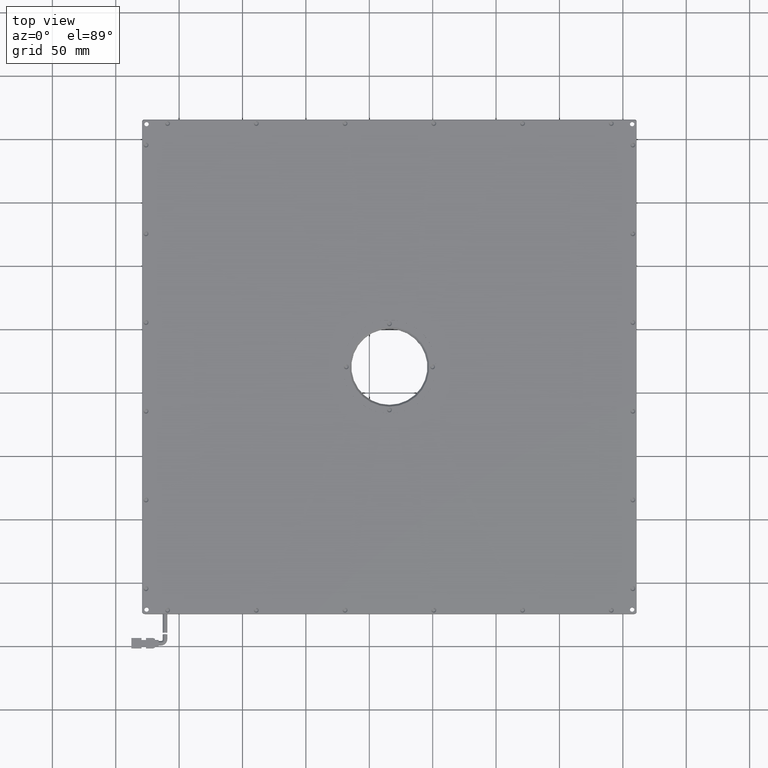
[diagram: clean part render]
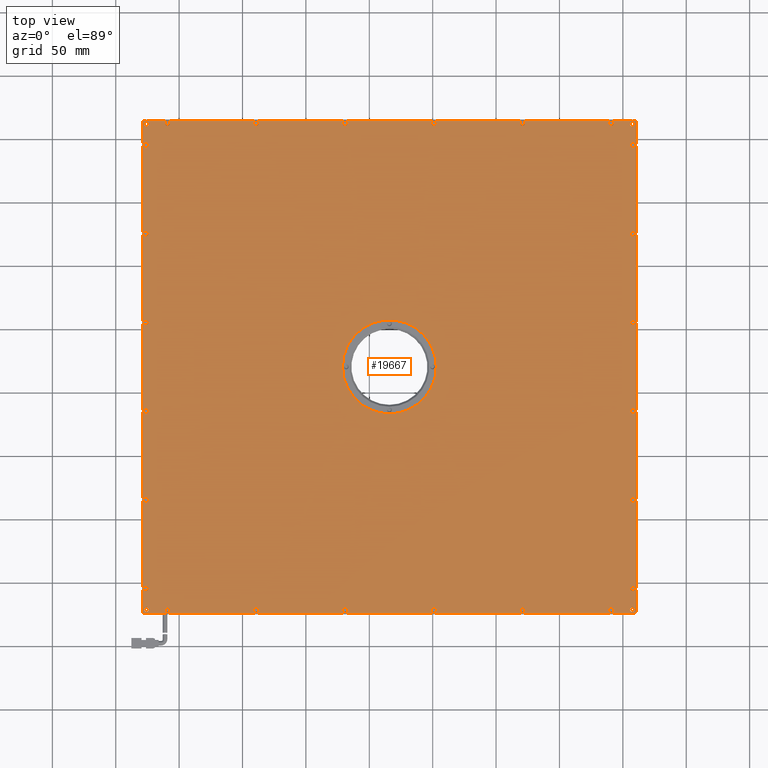
[diagram: same view with one face highlighted and labeled with its STEP entity id]
A machine part, top view. The second image highlights one B-rep face of the part: STEP entity #19667.
In plain terms, the highlighted planar face has unit normal (0, -0, 1).
Its self-contained STEP definition (entity closure, byte-faithful):
#19 = EDGE_CURVE ( 'NONE', #16610, #15434, #18710, .T. ) ;
#71 = ORIENTED_EDGE ( 'NONE', *, *, #5169, .F. ) ;
#99 = CIRCLE ( 'NONE', #7311, 1.749999999999973800 ) ;
#132 = VERTEX_POINT ( 'NONE', #11155 ) ;
#182 = CARTESIAN_POINT ( 'NONE',  ( 70.85159820146100200, 212.4229729729719100, 8.250000000019097600 ) ) ;
#192 = DIRECTION ( 'NONE',  ( 1.000000000000000000, 0.0000000000000000000, 0.0000000000000000000 ) ) ;
#221 = CARTESIAN_POINT ( 'NONE',  ( -228.1484017985404500, 55.42297297297388100, 8.250000000019097600 ) ) ;
#245 = DIRECTION ( 'NONE',  ( 1.000000000000000000, 0.0000000000000000000, 0.0000000000000000000 ) ) ;
#292 = CARTESIAN_POINT ( 'NONE',  ( -139.1484017985389100, -171.5770270270280400, 8.250000000019097600 ) ) ;
#489 = EDGE_CURVE ( 'NONE', #5681, #8412, #10947, .T. ) ;
#575 = ORIENTED_EDGE ( 'NONE', *, *, #9000, .T. ) ;
#677 = VERTEX_POINT ( 'NONE', #19984 ) ;
#689 = AXIS2_PLACEMENT_3D ( 'NONE', #7509, #11070, #11147 ) ;
#701 = CARTESIAN_POINT ( 'NONE',  ( 157.8515982014611400, 55.42297297297133700, 8.250000000019097600 ) ) ;
#725 = DIRECTION ( 'NONE',  ( -0.7071067811865752200, 0.7071067811865197100, 0.0000000000000000000 ) ) ;
#739 = CIRCLE ( 'NONE', #5838, 2.000000000034613200 ) ;
#899 = ORIENTED_EDGE ( 'NONE', *, *, #19, .T. ) ;
#911 = AXIS2_PLACEMENT_3D ( 'NONE', #11047, #19622, #6128 ) ;
#934 = VECTOR ( 'NONE', #12184, 1000.000000000000000 ) ;
#937 = EDGE_CURVE ( 'NONE', #21465, #8484, #11721, .T. ) ;
#972 = EDGE_CURVE ( 'NONE', #132, #18748, #16274, .T. ) ;
#973 = CARTESIAN_POINT ( 'NONE',  ( -1.148401798573610400, 212.4229729729719100, 8.250000000019097600 ) ) ;
#988 = CARTESIAN_POINT ( 'NONE',  ( -69.14840179853901200, 212.4229729729719100, 8.249999999962254200 ) ) ;
#1047 = CARTESIAN_POINT ( 'NONE',  ( -211.1484017985373200, 212.4229729729718800, 8.250000000019097600 ) ) ;
#1063 = DIRECTION ( 'NONE',  ( -0.0000000000000000000, 0.0000000000000000000, -1.000000000000000000 ) ) ;
#1089 = DIRECTION ( 'NONE',  ( 1.000000000000000000, 0.0000000000000000000, 0.0000000000000000000 ) ) ;
#1091 = VERTEX_POINT ( 'NONE', #20332 ) ;
#1127 = CIRCLE ( 'NONE', #689, 2.000000000027660100 ) ;
#1128 = VERTEX_POINT ( 'NONE', #16843 ) ;
#1159 = CARTESIAN_POINT ( 'NONE',  ( 157.8515982014609200, -14.57702702702867700, 8.250000000019097600 ) ) ;
#1160 = EDGE_CURVE ( 'NONE', #4319, #12065, #10635, .T. ) ;
#1171 = VERTEX_POINT ( 'NONE', #5293 ) ;
#1176 = DIRECTION ( 'NONE',  ( 1.000000000000000000, 0.0000000000000000000, 0.0000000000000000000 ) ) ;
#1190 = FACE_BOUND ( 'NONE', #3068, .T. ) ;
#1197 = ORIENTED_EDGE ( 'NONE', *, *, #9824, .T. ) ;
#1214 = FACE_BOUND ( 'NONE', #17981, .T. ) ;
#1223 = CARTESIAN_POINT ( 'NONE',  ( -34.14840179853894900, 20.42297297297193700, 8.249999999999998200 ) ) ;
#1250 = CARTESIAN_POINT ( 'NONE',  ( 159.8515982014210400, -14.57702702702867700, 8.250000000019097600 ) ) ;
#1261 = ORIENTED_EDGE ( 'NONE', *, *, #9126, .T. ) ;
#1269 = AXIS2_PLACEMENT_3D ( 'NONE', #3162, #16796, #21929 ) ;
#1361 = CARTESIAN_POINT ( 'NONE',  ( -229.1484017985389700, -174.0770270270280900, 8.250000000000026600 ) ) ;
#1427 = VERTEX_POINT ( 'NONE', #973 ) ;
#1428 = DIRECTION ( 'NONE',  ( 0.0000000000000000000, 0.0000000000000000000, -1.000000000000000000 ) ) ;
#1463 = VERTEX_POINT ( 'NONE', #12862 ) ;
#1486 = AXIS2_PLACEMENT_3D ( 'NONE', #14032, #14098, #2052 ) ;
#1491 = VERTEX_POINT ( 'NONE', #14599 ) ;
#1557 = AXIS2_PLACEMENT_3D ( 'NONE', #13792, #18962, #19162 ) ;
#1608 = VERTEX_POINT ( 'NONE', #6887 ) ;
#1609 = DIRECTION ( 'NONE',  ( 1.000000000000000000, 0.0000000000000000000, 0.0000000000000000000 ) ) ;
#1758 = CARTESIAN_POINT ( 'NONE',  ( 157.8515982014616000, 195.4229729729713400, 8.250000000019097600 ) ) ;
#1793 = CIRCLE ( 'NONE', #8721, 1.749999999999973800 ) ;
#1794 = EDGE_LOOP ( 'NONE', ( #9988, #13631 ) ) ;
#1827 = DIRECTION ( 'NONE',  ( -0.0000000000000000000, 0.0000000000000000000, -1.000000000000000000 ) ) ;
#1844 = CARTESIAN_POINT ( 'NONE',  ( 157.8515982014611400, 55.42297297297133700, 8.250000000019097600 ) ) ;
#1845 = EDGE_LOOP ( 'NONE', ( #2227, #13469 ) ) ;
#1932 = EDGE_CURVE ( 'NONE', #4319, #10897, #12162, .T. ) ;
#2009 = AXIS2_PLACEMENT_3D ( 'NONE', #1844, #8470, #1609 ) ;
#2042 = AXIS2_PLACEMENT_3D ( 'NONE', #10353, #5205, #5283 ) ;
#2052 = DIRECTION ( 'NONE',  ( 1.000000000000000000, 0.0000000000000000000, 0.0000000000000000000 ) ) ;
#2205 = CIRCLE ( 'NONE', #13730, 1.999999999991425300 ) ;
#2227 = ORIENTED_EDGE ( 'NONE', *, *, #14999, .T. ) ;
#2269 = EDGE_CURVE ( 'NONE', #19689, #3509, #19844, .T. ) ;
#2273 = FACE_BOUND ( 'NONE', #20085, .T. ) ;
#2340 = EDGE_CURVE ( 'NONE', #16902, #12065, #16410, .T. ) ;
#2344 = CIRCLE ( 'NONE', #6830, 2.000000000004082100 ) ;
#2382 = AXIS2_PLACEMENT_3D ( 'NONE', #17221, #6990, #18947 ) ;
#2551 = CARTESIAN_POINT ( 'NONE',  ( 159.8515982014210400, 125.4229729729713400, 8.250000000019097600 ) ) ;
#2568 = PLANE ( 'NONE',  #4265 ) ;
#2573 = CARTESIAN_POINT ( 'NONE',  ( 155.8515982015003100, -84.57702702702867700, 8.250000000019097600 ) ) ;
#2701 = EDGE_LOOP ( 'NONE', ( #11495, #16515 ) ) ;
#2788 = DIRECTION ( 'NONE',  ( -0.0000000000000000000, 0.0000000000000000000, -1.000000000000000000 ) ) ;
#2895 = EDGE_LOOP ( 'NONE', ( #19417, #15544 ) ) ;
#2918 = DIRECTION ( 'NONE',  ( 1.000000000000000000, 0.0000000000000000000, 0.0000000000000000000 ) ) ;
#2976 = VERTEX_POINT ( 'NONE', #7776 ) ;
#3068 = EDGE_LOOP ( 'NONE', ( #575, #899 ) ) ;
#3097 = EDGE_CURVE ( 'NONE', #11017, #9340, #19969, .T. ) ;
#3162 = CARTESIAN_POINT ( 'NONE',  ( -226.1484017985378300, 125.4229729729738900, 8.250000000019097600 ) ) ;
#3173 = VERTEX_POINT ( 'NONE', #18899 ) ;
#3220 = ORIENTED_EDGE ( 'NONE', *, *, #17014, .T. ) ;
#3252 = VERTEX_POINT ( 'NONE', #7170 ) ;
#3347 = FACE_BOUND ( 'NONE', #17711, .T. ) ;
#3357 = CARTESIAN_POINT ( 'NONE',  ( 157.3515982014610000, 211.9229729729719300, 8.250000000000000000 ) ) ;
#3396 = EDGE_CURVE ( 'NONE', #9691, #21861, #15974, .T. ) ;
#3456 = CARTESIAN_POINT ( 'NONE',  ( 0.8515982014610026200, 212.4229729729719100, 8.250000000019097600 ) ) ;
#3474 = VERTEX_POINT ( 'NONE', #9856 ) ;
#3485 = ORIENTED_EDGE ( 'NONE', *, *, #21407, .T. ) ;
#3509 = VERTEX_POINT ( 'NONE', #18198 ) ;
#3511 = DIRECTION ( 'NONE',  ( 1.000000000000000000, 0.0000000000000000000, 0.0000000000000000000 ) ) ;
#3515 = CIRCLE ( 'NONE', #13488, 1.749999999999973800 ) ;
#3521 = DIRECTION ( 'NONE',  ( -0.0000000000000000000, 0.0000000000000000000, -1.000000000000000000 ) ) ;
#3570 = EDGE_CURVE ( 'NONE', #7675, #14749, #17293, .T. ) ;
#3647 = DIRECTION ( 'NONE',  ( 1.000000000000000000, 7.116814260417670700E-017, 7.116814260417670700E-017 ) ) ;
#3656 = CARTESIAN_POINT ( 'NONE',  ( 70.85159820146114400, -171.5770270270280100, 8.250000000019097600 ) ) ;
#3669 = DIRECTION ( 'NONE',  ( 1.000000000000000000, 0.0000000000000000000, 0.0000000000000000000 ) ) ;
#3682 = CARTESIAN_POINT ( 'NONE',  ( 157.8515982014616000, 195.4229729729713400, 8.250000000019097600 ) ) ;
#3702 = ORIENTED_EDGE ( 'NONE', *, *, #17756, .T. ) ;
#3723 = ORIENTED_EDGE ( 'NONE', *, *, #15780, .T. ) ;
#3757 = ORIENTED_EDGE ( 'NONE', *, *, #9455, .T. ) ;
#3823 = VERTEX_POINT ( 'NONE', #9653 ) ;
#3892 = AXIS2_PLACEMENT_3D ( 'NONE', #1159, #4462, #1089 ) ;
#3895 = CIRCLE ( 'NONE', #1557, 1.999999999959645200 ) ;
#3935 = EDGE_CURVE ( 'NONE', #6903, #1427, #739, .T. ) ;
#3975 = EDGE_CURVE ( 'NONE', #12060, #10923, #2344, .T. ) ;
#4049 = AXIS2_PLACEMENT_3D ( 'NONE', #1758, #5233, #13646 ) ;
#4063 = CIRCLE ( 'NONE', #9250, 1.999999999960588900 ) ;
#4085 = EDGE_CURVE ( 'NONE', #9340, #11017, #21250, .T. ) ;
#4106 = EDGE_LOOP ( 'NONE', ( #21252, #6477 ) ) ;
#4125 = ORIENTED_EDGE ( 'NONE', *, *, #3570, .T. ) ;
#4139 = DIRECTION ( 'NONE',  ( 1.000000000000000000, 0.0000000000000000000, 0.0000000000000000000 ) ) ;
#4154 = ORIENTED_EDGE ( 'NONE', *, *, #8740, .T. ) ;
#4160 = DIRECTION ( 'NONE',  ( 0.0000000000000000000, -1.000000000000000000, -0.0000000000000000000 ) ) ;
#4186 = VERTEX_POINT ( 'NONE', #2551 ) ;
#4265 = AXIS2_PLACEMENT_3D ( 'NONE', #21043, #16143, #12680 ) ;
#4294 = CARTESIAN_POINT ( 'NONE',  ( -228.1484017985433500, -84.57702702702613400, 8.250000000019097600 ) ) ;
#4301 = CARTESIAN_POINT ( 'NONE',  ( 160.3515982014610000, 215.4229729729718800, 8.249999999999998200 ) ) ;
#4319 = VERTEX_POINT ( 'NONE', #19662 ) ;
#4323 = CARTESIAN_POINT ( 'NONE',  ( -139.1484017985390300, 212.4229729729718800, 8.250000000019097600 ) ) ;
#4387 = DIRECTION ( 'NONE',  ( 1.000000000000000000, 0.0000000000000000000, 0.0000000000000000000 ) ) ;
#4436 = CIRCLE ( 'NONE', #911, 1.749999999999973800 ) ;
#4462 = DIRECTION ( 'NONE',  ( -0.0000000000000000000, 0.0000000000000000000, -1.000000000000000000 ) ) ;
#4592 = ORIENTED_EDGE ( 'NONE', *, *, #13868, .T. ) ;
#4675 = CARTESIAN_POINT ( 'NONE',  ( -228.6484017985390300, 214.2158661917852100, 8.249999999999998200 ) ) ;
#4907 = DIRECTION ( 'NONE',  ( -1.000000000000000000, -7.116814260417670700E-017, 7.116814260417670700E-017 ) ) ;
#4917 = DIRECTION ( 'NONE',  ( 1.000000000000000000, 0.0000000000000000000, 0.0000000000000000000 ) ) ;
#4967 = AXIS2_PLACEMENT_3D ( 'NONE', #19829, #13118, #4387 ) ;
#5063 = EDGE_LOOP ( 'NONE', ( #4125, #3220 ) ) ;
#5069 = CARTESIAN_POINT ( 'NONE',  ( 138.8515982014403400, -171.5770270270280100, 8.250000000019097600 ) ) ;
#5082 = VERTEX_POINT ( 'NONE', #17477 ) ;
#5097 = CARTESIAN_POINT ( 'NONE',  ( -225.6484017985369500, 211.9229729729738900, 8.250000000000000000 ) ) ;
#5168 = FACE_BOUND ( 'NONE', #16571, .T. ) ;
#5169 = EDGE_CURVE ( 'NONE', #18579, #10897, #14203, .T. ) ;
#5176 = AXIS2_PLACEMENT_3D ( 'NONE', #22066, #20433, #13563 ) ;
#5193 = FACE_BOUND ( 'NONE', #5063, .T. ) ;
#5205 = DIRECTION ( 'NONE',  ( -0.0000000000000000000, 0.0000000000000000000, -1.000000000000000000 ) ) ;
#5233 = DIRECTION ( 'NONE',  ( -0.0000000000000000000, 0.0000000000000000000, -1.000000000000000000 ) ) ;
#5239 = DIRECTION ( 'NONE',  ( 1.000000000000000000, 0.0000000000000000000, 0.0000000000000000000 ) ) ;
#5248 = CARTESIAN_POINT ( 'NONE',  ( -226.1484017985407600, -154.5770270270261300, 8.250000000019097600 ) ) ;
#5283 = DIRECTION ( 'NONE',  ( 1.000000000000000000, 0.0000000000000000000, 0.0000000000000000000 ) ) ;
#5293 = CARTESIAN_POINT ( 'NONE',  ( 155.8515982015007900, -14.57702702702867700, 8.250000000019097600 ) ) ;
#5295 = ORIENTED_EDGE ( 'NONE', *, *, #16312, .T. ) ;
#5300 = CIRCLE ( 'NONE', #4967, 1.749999999999973800 ) ;
#5356 = ORIENTED_EDGE ( 'NONE', *, *, #3975, .T. ) ;
#5361 = CIRCLE ( 'NONE', #15524, 1.749999999999973800 ) ;
#5462 = EDGE_LOOP ( 'NONE', ( #10692, #14009 ) ) ;
#5465 = EDGE_LOOP ( 'NONE', ( #11300, #12400 ) ) ;
#5521 = CARTESIAN_POINT ( 'NONE',  ( -71.14840179852360800, 212.4229729729719100, 8.249999999962254200 ) ) ;
#5605 = DIRECTION ( 'NONE',  ( -0.0000000000000000000, 0.0000000000000000000, -1.000000000000000000 ) ) ;
#5681 = VERTEX_POINT ( 'NONE', #1047 ) ;
#5687 = DIRECTION ( 'NONE',  ( -0.0000000000000000000, 0.0000000000000000000, -1.000000000000000000 ) ) ;
#5715 = AXIS2_PLACEMENT_3D ( 'NONE', #18758, #13668, #8537 ) ;
#5718 = FACE_BOUND ( 'NONE', #13174, .T. ) ;
#5731 = CARTESIAN_POINT ( 'NONE',  ( -209.1484017985390600, 212.4229729729718800, 8.250000000019097600 ) ) ;
#5745 = FACE_BOUND ( 'NONE', #13266, .T. ) ;
#5769 = EDGE_CURVE ( 'NONE', #10900, #3823, #5361, .T. ) ;
#5793 = DIRECTION ( 'NONE',  ( 1.000000000000000000, 0.0000000000000000000, 0.0000000000000000000 ) ) ;
#5838 = AXIS2_PLACEMENT_3D ( 'NONE', #3456, #1827, #6637 ) ;
#5880 = ORIENTED_EDGE ( 'NONE', *, *, #10559, .T. ) ;
#5907 = AXIS2_PLACEMENT_3D ( 'NONE', #5731, #16162, #5793 ) ;
#5920 = CIRCLE ( 'NONE', #5176, 2.000000000034613200 ) ;
#5934 = AXIS2_PLACEMENT_3D ( 'NONE', #19274, #20991, #12839 ) ;
#5968 = AXIS2_PLACEMENT_3D ( 'NONE', #16657, #11362, #1176 ) ;
#6018 = EDGE_CURVE ( 'NONE', #12640, #15518, #20606, .T. ) ;
#6052 = CARTESIAN_POINT ( 'NONE',  ( 159.6444914202745300, 214.9229729729719100, 8.250000000000003600 ) ) ;
#6058 = CIRCLE ( 'NONE', #15589, 2.000000000000445900 ) ;
#6099 = CIRCLE ( 'NONE', #2009, 1.999999999959895000 ) ;
#6100 = DIRECTION ( 'NONE',  ( 1.000000000000000000, 0.0000000000000000000, 0.0000000000000000000 ) ) ;
#6128 = DIRECTION ( 'NONE',  ( 1.000000000000000000, 0.0000000000000000000, 0.0000000000000000000 ) ) ;
#6137 = EDGE_CURVE ( 'NONE', #10676, #9982, #4063, .T. ) ;
#6141 = AXIS2_PLACEMENT_3D ( 'NONE', #18827, #3521, #192 ) ;
#6198 = CARTESIAN_POINT ( 'NONE',  ( -226.1484017985371200, 195.4229729729738900, 8.250000000019097600 ) ) ;
#6230 = LINE ( 'NONE', #8843, #934 ) ;
#6269 = EDGE_CURVE ( 'NONE', #10923, #12060, #11822, .T. ) ;
#6343 = VERTEX_POINT ( 'NONE', #4675 ) ;
#6473 = ORIENTED_EDGE ( 'NONE', *, *, #1160, .F. ) ;
#6474 = DIRECTION ( 'NONE',  ( 0.0000000000000000000, 0.0000000000000000000, -1.000000000000000000 ) ) ;
#6477 = ORIENTED_EDGE ( 'NONE', *, *, #9984, .T. ) ;
#6576 = CARTESIAN_POINT ( 'NONE',  ( 157.8515982014604300, -154.5770270270286900, 8.250000000019097600 ) ) ;
#6582 = CIRCLE ( 'NONE', #16994, 1.999999999959423100 ) ;
#6589 = EDGE_CURVE ( 'NONE', #3474, #7916, #15545, .T. ) ;
#6628 = AXIS2_PLACEMENT_3D ( 'NONE', #16258, #8091, #16876 ) ;
#6637 = DIRECTION ( 'NONE',  ( 1.000000000000000000, 0.0000000000000000000, 0.0000000000000000000 ) ) ;
#6656 = CARTESIAN_POINT ( 'NONE',  ( 70.85159820146100200, 212.4229729729719100, 8.250000000019097600 ) ) ;
#6705 = EDGE_CURVE ( 'NONE', #8017, #13969, #1127, .T. ) ;
#6773 = FACE_BOUND ( 'NONE', #1794, .T. ) ;
#6800 = CARTESIAN_POINT ( 'NONE',  ( 2.851598201495615800, -171.5770270270280400, 8.250000000019097600 ) ) ;
#6830 = AXIS2_PLACEMENT_3D ( 'NONE', #13500, #20441, #5239 ) ;
#6887 = CARTESIAN_POINT ( 'NONE',  ( -141.1484017985304400, 212.4229729729718800, 8.250000000019097600 ) ) ;
#6903 = VERTEX_POINT ( 'NONE', #9979 ) ;
#6911 = CARTESIAN_POINT ( 'NONE',  ( 157.8515982014609200, -14.57702702702867700, 8.250000000019097600 ) ) ;
#6914 = CARTESIAN_POINT ( 'NONE',  ( -227.9412950173523600, 214.9229729729718800, 8.249999999999998200 ) ) ;
#6942 = AXIS2_PLACEMENT_3D ( 'NONE', #292, #15797, #19125 ) ;
#6960 = EDGE_LOOP ( 'NONE', ( #16001, #14184 ) ) ;
#6990 = DIRECTION ( 'NONE',  ( -0.0000000000000000000, 0.0000000000000000000, -1.000000000000000000 ) ) ;
#7015 = AXIS2_PLACEMENT_3D ( 'NONE', #15965, #17672, #14529 ) ;
#7043 = DIRECTION ( 'NONE',  ( -0.0000000000000000000, 0.0000000000000000000, -1.000000000000000000 ) ) ;
#7067 = ORIENTED_EDGE ( 'NONE', *, *, #1932, .T. ) ;
#7104 = AXIS2_PLACEMENT_3D ( 'NONE', #3656, #18727, #245 ) ;
#7130 = AXIS2_PLACEMENT_3D ( 'NONE', #10657, #5605, #9029 ) ;
#7170 = CARTESIAN_POINT ( 'NONE',  ( 68.85159820143322000, 212.4229729729719100, 8.250000000019097600 ) ) ;
#7258 = DIRECTION ( 'NONE',  ( 1.000000000000000000, 0.0000000000000000000, 0.0000000000000000000 ) ) ;
#7311 = AXIS2_PLACEMENT_3D ( 'NONE', #11948, #16805, #18756 ) ;
#7331 = ORIENTED_EDGE ( 'NONE', *, *, #22045, .T. ) ;
#7499 = DIRECTION ( 'NONE',  ( -0.0000000000000000000, 0.0000000000000000000, -1.000000000000000000 ) ) ;
#7509 = CARTESIAN_POINT ( 'NONE',  ( 70.85159820146114400, -171.5770270270280100, 8.250000000019097600 ) ) ;
#7526 = CARTESIAN_POINT ( 'NONE',  ( 155.8515982015012500, 55.42297297297133700, 8.250000000019097600 ) ) ;
#7533 = DIRECTION ( 'NONE',  ( -0.0000000000000000000, 0.0000000000000000000, -1.000000000000000000 ) ) ;
#7568 = CIRCLE ( 'NONE', #1269, 2.000000000001167500 ) ;
#7609 = CARTESIAN_POINT ( 'NONE',  ( -228.1484017985390300, 125.4229729729738900, 8.250000000019097600 ) ) ;
#7670 = DIRECTION ( 'NONE',  ( 1.000000000000000000, 0.0000000000000000000, 0.0000000000000000000 ) ) ;
#7675 = VERTEX_POINT ( 'NONE', #13052 ) ;
#7759 = AXIS2_PLACEMENT_3D ( 'NONE', #11102, #9345, #14476 ) ;
#7776 = CARTESIAN_POINT ( 'NONE',  ( -1.148401798573388300, -171.5770270270280400, 8.250000000019097600 ) ) ;
#7784 = CARTESIAN_POINT ( 'NONE',  ( 160.3515982014610000, 214.2158661917854400, 8.249999999999998200 ) ) ;
#7859 = ORIENTED_EDGE ( 'NONE', *, *, #18995, .T. ) ;
#7916 = VERTEX_POINT ( 'NONE', #6052 ) ;
#7969 = CARTESIAN_POINT ( 'NONE',  ( -207.1484017985407600, -171.5770270270280700, 8.250000000019097600 ) ) ;
#8017 = VERTEX_POINT ( 'NONE', #12900 ) ;
#8059 = DIRECTION ( 'NONE',  ( 1.000000000000000000, 0.0000000000000000000, 0.0000000000000000000 ) ) ;
#8091 = DIRECTION ( 'NONE',  ( -0.0000000000000000000, 0.0000000000000000000, -1.000000000000000000 ) ) ;
#8095 = CIRCLE ( 'NONE', #6141, 1.999999999960588900 ) ;
#8153 = DIRECTION ( 'NONE',  ( 1.000000000000000000, 0.0000000000000000000, 0.0000000000000000000 ) ) ;
#8177 = CARTESIAN_POINT ( 'NONE',  ( -225.6484017985389100, -171.0770270270280700, 8.250000000000000000 ) ) ;
#8296 = EDGE_CURVE ( 'NONE', #20274, #18224, #17769, .T. ) ;
#8340 = DIRECTION ( 'NONE',  ( 1.000000000000000000, 0.0000000000000000000, 0.0000000000000000000 ) ) ;
#8348 = CARTESIAN_POINT ( 'NONE',  ( -139.1484017985390300, 212.4229729729718800, 8.250000000019097600 ) ) ;
#8408 = FACE_BOUND ( 'NONE', #6960, .T. ) ;
#8412 = VERTEX_POINT ( 'NONE', #14385 ) ;
#8448 = DIRECTION ( 'NONE',  ( -0.0000000000000000000, 0.0000000000000000000, -1.000000000000000000 ) ) ;
#8470 = DIRECTION ( 'NONE',  ( -0.0000000000000000000, 0.0000000000000000000, -1.000000000000000000 ) ) ;
#8484 = VERTEX_POINT ( 'NONE', #12889 ) ;
#8511 = CIRCLE ( 'NONE', #5715, 2.000000000003332400 ) ;
#8533 = EDGE_CURVE ( 'NONE', #17740, #18670, #7568, .T. ) ;
#8537 = DIRECTION ( 'NONE',  ( 1.000000000000000000, 0.0000000000000000000, 0.0000000000000000000 ) ) ;
#8551 = AXIS2_PLACEMENT_3D ( 'NONE', #9337, #7533, #19611 ) ;
#8666 = VERTEX_POINT ( 'NONE', #16936 ) ;
#8672 = FACE_BOUND ( 'NONE', #11760, .T. ) ;
#8721 = AXIS2_PLACEMENT_3D ( 'NONE', #11618, #6474, #14986 ) ;
#8740 = EDGE_CURVE ( 'NONE', #20676, #5082, #17456, .T. ) ;
#8842 = AXIS2_PLACEMENT_3D ( 'NONE', #12661, #5687, #16126 ) ;
#8843 = CARTESIAN_POINT ( 'NONE',  ( -228.6484017985390300, 215.4229729729718800, 8.249999999999998200 ) ) ;
#8912 = VERTEX_POINT ( 'NONE', #16808 ) ;
#8957 = CIRCLE ( 'NONE', #2042, 1.999999999998169900 ) ;
#9000 = EDGE_CURVE ( 'NONE', #15434, #16610, #8511, .T. ) ;
#9024 = EDGE_CURVE ( 'NONE', #18748, #132, #6099, .T. ) ;
#9029 = DIRECTION ( 'NONE',  ( 1.000000000000000000, 0.0000000000000000000, 0.0000000000000000000 ) ) ;
#9069 = CARTESIAN_POINT ( 'NONE',  ( 159.6444914202743600, -174.0770270270280700, 8.249999999999998200 ) ) ;
#9126 = EDGE_CURVE ( 'NONE', #3509, #19689, #9866, .T. ) ;
#9172 = DIRECTION ( 'NONE',  ( 0.7071067811865474600, -0.7071067811865474600, 0.0000000000000000000 ) ) ;
#9183 = ORIENTED_EDGE ( 'NONE', *, *, #972, .T. ) ;
#9235 = AXIS2_PLACEMENT_3D ( 'NONE', #21662, #21456, #6100 ) ;
#9250 = AXIS2_PLACEMENT_3D ( 'NONE', #6576, #21856, #10105 ) ;
#9337 = CARTESIAN_POINT ( 'NONE',  ( 140.8515982014611400, -171.5770270270280100, 8.250000000019097600 ) ) ;
#9340 = VERTEX_POINT ( 'NONE', #14398 ) ;
#9345 = DIRECTION ( 'NONE',  ( -0.0000000000000000000, 0.0000000000000000000, -1.000000000000000000 ) ) ;
#9353 = EDGE_CURVE ( 'NONE', #17486, #3173, #5300, .T. ) ;
#9355 = ORIENTED_EDGE ( 'NONE', *, *, #14578, .T. ) ;
#9360 = CIRCLE ( 'NONE', #7104, 2.000000000027660100 ) ;
#9455 = EDGE_CURVE ( 'NONE', #1463, #14274, #19408, .T. ) ;
#9506 = DIRECTION ( 'NONE',  ( -0.0000000000000000000, 0.0000000000000000000, -1.000000000000000000 ) ) ;
#9632 = ORIENTED_EDGE ( 'NONE', *, *, #16015, .T. ) ;
#9646 = DIRECTION ( 'NONE',  ( -0.0000000000000000000, 0.0000000000000000000, -1.000000000000000000 ) ) ;
#9653 = CARTESIAN_POINT ( 'NONE',  ( -227.3984017985388800, -171.0770270270280700, 8.250000000000000000 ) ) ;
#9691 = VERTEX_POINT ( 'NONE', #5069 ) ;
#9710 = DIRECTION ( 'NONE',  ( 0.0000000000000000000, 0.0000000000000000000, -1.000000000000000000 ) ) ;
#9716 = FACE_BOUND ( 'NONE', #5465, .T. ) ;
#9726 = DIRECTION ( 'NONE',  ( 1.000000000000000000, 0.0000000000000000000, 0.0000000000000000000 ) ) ;
#9741 = FACE_BOUND ( 'NONE', #20295, .T. ) ;
#9777 = CARTESIAN_POINT ( 'NONE',  ( -228.1484017985375800, 195.4229729729738900, 8.250000000019097600 ) ) ;
#9824 = EDGE_CURVE ( 'NONE', #14274, #1463, #12704, .T. ) ;
#9839 = DIRECTION ( 'NONE',  ( -0.0000000000000000000, 0.0000000000000000000, -1.000000000000000000 ) ) ;
#9847 = EDGE_CURVE ( 'NONE', #21861, #9691, #14048, .T. ) ;
#9856 = CARTESIAN_POINT ( 'NONE',  ( -227.9412950173523300, 214.9229729729718800, 8.249999999999991100 ) ) ;
#9866 = CIRCLE ( 'NONE', #10410, 2.000000000020929500 ) ;
#9973 = DIRECTION ( 'NONE',  ( 1.000000000000000000, 0.0000000000000000000, 0.0000000000000000000 ) ) ;
#9979 = CARTESIAN_POINT ( 'NONE',  ( 2.851598201495615800, 212.4229729729719100, 8.250000000019097600 ) ) ;
#9982 = VERTEX_POINT ( 'NONE', #10145 ) ;
#9984 = EDGE_CURVE ( 'NONE', #3823, #10900, #1793, .T. ) ;
#9988 = ORIENTED_EDGE ( 'NONE', *, *, #4085, .T. ) ;
#10035 = CARTESIAN_POINT ( 'NONE',  ( -69.14840179853889900, -171.5770270270280400, 8.249999999962254200 ) ) ;
#10103 = DIRECTION ( 'NONE',  ( -0.0000000000000000000, 0.0000000000000000000, -1.000000000000000000 ) ) ;
#10105 = DIRECTION ( 'NONE',  ( 1.000000000000000000, 0.0000000000000000000, 0.0000000000000000000 ) ) ;
#10107 = CIRCLE ( 'NONE', #3892, 1.999999999960117000 ) ;
#10120 = CARTESIAN_POINT ( 'NONE',  ( -71.14840179853894100, 20.42297297297194100, 8.249999999999998200 ) ) ;
#10145 = CARTESIAN_POINT ( 'NONE',  ( 155.8515982014998500, -154.5770270270286900, 8.250000000019097600 ) ) ;
#10242 = EDGE_LOOP ( 'NONE', ( #18690, #10788 ) ) ;
#10249 = FACE_BOUND ( 'NONE', #20210, .T. ) ;
#10260 = CARTESIAN_POINT ( 'NONE',  ( 157.3515982014603800, -171.0770270270286900, 8.250000000000000000 ) ) ;
#10275 = FACE_BOUND ( 'NONE', #18859, .T. ) ;
#10336 = DIRECTION ( 'NONE',  ( 0.0000000000000000000, 0.0000000000000000000, -1.000000000000000000 ) ) ;
#10353 = CARTESIAN_POINT ( 'NONE',  ( -209.1484017985389400, -171.5770270270280700, 8.250000000019097600 ) ) ;
#10410 = AXIS2_PLACEMENT_3D ( 'NONE', #13967, #12466, #7258 ) ;
#10515 = AXIS2_PLACEMENT_3D ( 'NONE', #14417, #9506, #21489 ) ;
#10559 = EDGE_CURVE ( 'NONE', #3173, #17486, #20103, .T. ) ;
#10586 = EDGE_CURVE ( 'NONE', #3252, #8666, #21441, .T. ) ;
#10598 = CARTESIAN_POINT ( 'NONE',  ( -137.1484017985475800, 212.4229729729718800, 8.250000000019097600 ) ) ;
#10635 = LINE ( 'NONE', #1361, #14903 ) ;
#10657 = CARTESIAN_POINT ( 'NONE',  ( -226.1484017985385700, 55.42297297297388100, 8.250000000019097600 ) ) ;
#10676 = VERTEX_POINT ( 'NONE', #13817 ) ;
#10692 = ORIENTED_EDGE ( 'NONE', *, *, #6137, .T. ) ;
#10725 = CARTESIAN_POINT ( 'NONE',  ( -228.6484017985390300, -173.3699202458416000, 8.249999999999998200 ) ) ;
#10736 = ORIENTED_EDGE ( 'NONE', *, *, #19019, .T. ) ;
#10788 = ORIENTED_EDGE ( 'NONE', *, *, #3396, .T. ) ;
#10804 = DIRECTION ( 'NONE',  ( 0.0000000000000000000, 0.0000000000000000000, -1.000000000000000000 ) ) ;
#10897 = VERTEX_POINT ( 'NONE', #21321 ) ;
#10900 = VERTEX_POINT ( 'NONE', #12750 ) ;
#10919 = ORIENTED_EDGE ( 'NONE', *, *, #937, .T. ) ;
#10923 = VERTEX_POINT ( 'NONE', #21401 ) ;
#10935 = CIRCLE ( 'NONE', #14910, 2.000000000034502200 ) ;
#10942 = EDGE_CURVE ( 'NONE', #18586, #1608, #2205, .T. ) ;
#10947 = CIRCLE ( 'NONE', #5907, 1.999999999998280900 ) ;
#10966 = ORIENTED_EDGE ( 'NONE', *, *, #2340, .T. ) ;
#10978 = VECTOR ( 'NONE', #3647, 1000.000000000000000 ) ;
#11017 = VERTEX_POINT ( 'NONE', #15151 ) ;
#11047 = CARTESIAN_POINT ( 'NONE',  ( 157.3515982014610000, 211.9229729729719300, 8.250000000000000000 ) ) ;
#11070 = DIRECTION ( 'NONE',  ( -0.0000000000000000000, 0.0000000000000000000, -1.000000000000000000 ) ) ;
#11072 = AXIS2_PLACEMENT_3D ( 'NONE', #13106, #21678, #2918 ) ;
#11102 = CARTESIAN_POINT ( 'NONE',  ( 157.8515982014606600, -84.57702702702867700, 8.250000000019097600 ) ) ;
#11147 = DIRECTION ( 'NONE',  ( 1.000000000000000000, 0.0000000000000000000, 0.0000000000000000000 ) ) ;
#11155 = CARTESIAN_POINT ( 'NONE',  ( 159.8515982014210400, 55.42297297297133700, 8.250000000019097600 ) ) ;
#11182 = EDGE_CURVE ( 'NONE', #1427, #6903, #5920, .T. ) ;
#11183 = DIRECTION ( 'NONE',  ( 1.000000000000000000, 0.0000000000000000000, 0.0000000000000000000 ) ) ;
#11216 = VERTEX_POINT ( 'NONE', #11785 ) ;
#11297 = EDGE_LOOP ( 'NONE', ( #19580, #7859 ) ) ;
#11300 = ORIENTED_EDGE ( 'NONE', *, *, #13316, .T. ) ;
#11362 = DIRECTION ( 'NONE',  ( -0.0000000000000000000, 0.0000000000000000000, -1.000000000000000000 ) ) ;
#11495 = ORIENTED_EDGE ( 'NONE', *, *, #16880, .T. ) ;
#11527 = VECTOR ( 'NONE', #4160, 1000.000000000000000 ) ;
#11607 = CARTESIAN_POINT ( 'NONE',  ( 0.8515982014611136500, -171.5770270270280400, 8.250000000019097600 ) ) ;
#11618 = CARTESIAN_POINT ( 'NONE',  ( -225.6484017985389100, -171.0770270270280700, 8.250000000000000000 ) ) ;
#11668 = VECTOR ( 'NONE', #725, 1000.000000000000100 ) ;
#11721 = CIRCLE ( 'NONE', #7759, 1.999999999960366800 ) ;
#11760 = EDGE_LOOP ( 'NONE', ( #19706, #20092 ) ) ;
#11763 = DIRECTION ( 'NONE',  ( 1.000000000000000000, 0.0000000000000000000, 0.0000000000000000000 ) ) ;
#11777 = VERTEX_POINT ( 'NONE', #20015 ) ;
#11785 = CARTESIAN_POINT ( 'NONE',  ( 155.8515982015017300, 125.4229729729713400, 8.250000000019097600 ) ) ;
#11822 = CIRCLE ( 'NONE', #17547, 2.000000000004082100 ) ;
#11828 = EDGE_CURVE ( 'NONE', #2976, #22109, #10935, .T. ) ;
#11882 = ORIENTED_EDGE ( 'NONE', *, *, #8533, .T. ) ;
#11948 = CARTESIAN_POINT ( 'NONE',  ( 157.3515982014603800, -171.0770270270286900, 8.250000000000000000 ) ) ;
#11954 = DIRECTION ( 'NONE',  ( 1.000000000000000000, 0.0000000000000000000, 0.0000000000000000000 ) ) ;
#11966 = AXIS2_PLACEMENT_3D ( 'NONE', #10035, #10103, #8153 ) ;
#12022 = DIRECTION ( 'NONE',  ( 1.000000000000000000, 0.0000000000000000000, 0.0000000000000000000 ) ) ;
#12060 = VERTEX_POINT ( 'NONE', #19413 ) ;
#12065 = VERTEX_POINT ( 'NONE', #17649 ) ;
#12082 = EDGE_CURVE ( 'NONE', #20567, #19826, #19971, .T. ) ;
#12156 = EDGE_CURVE ( 'NONE', #18670, #17740, #16266, .T. ) ;
#12162 = LINE ( 'NONE', #9069, #20951 ) ;
#12183 = DIRECTION ( 'NONE',  ( 0.0000000000000000000, 0.0000000000000000000, -1.000000000000000000 ) ) ;
#12184 = DIRECTION ( 'NONE',  ( -0.0000000000000000000, 1.000000000000000000, 0.0000000000000000000 ) ) ;
#12220 = CARTESIAN_POINT ( 'NONE',  ( -34.14840179853894900, 20.42297297297193700, 8.249999999999998200 ) ) ;
#12324 = DIRECTION ( 'NONE',  ( 1.000000000000000000, 0.0000000000000000000, 0.0000000000000000000 ) ) ;
#12397 = FACE_BOUND ( 'NONE', #10242, .T. ) ;
#12400 = ORIENTED_EDGE ( 'NONE', *, *, #21969, .T. ) ;
#12458 = DIRECTION ( 'NONE',  ( -0.0000000000000000000, 0.0000000000000000000, -1.000000000000000000 ) ) ;
#12466 = DIRECTION ( 'NONE',  ( -0.0000000000000000000, 0.0000000000000000000, -1.000000000000000000 ) ) ;
#12609 = CIRCLE ( 'NONE', #11072, 2.000000000000445900 ) ;
#12617 = CARTESIAN_POINT ( 'NONE',  ( -211.1484017985371200, -171.5770270270280700, 8.250000000019097600 ) ) ;
#12640 = VERTEX_POINT ( 'NONE', #21601 ) ;
#12661 = CARTESIAN_POINT ( 'NONE',  ( 157.8515982014606600, -84.57702702702867700, 8.250000000019097600 ) ) ;
#12680 = DIRECTION ( 'NONE',  ( 1.000000000000000000, 0.0000000000000000000, -0.0000000000000000000 ) ) ;
#12704 = CIRCLE ( 'NONE', #7130, 2.000000000001889200 ) ;
#12750 = CARTESIAN_POINT ( 'NONE',  ( -223.8984017985389100, -171.0770270270280700, 8.250000000000000000 ) ) ;
#12838 = AXIS2_PLACEMENT_3D ( 'NONE', #15774, #12458, #3669 ) ;
#12839 = DIRECTION ( 'NONE',  ( 1.000000000000000000, 0.0000000000000000000, 0.0000000000000000000 ) ) ;
#12856 = EDGE_CURVE ( 'NONE', #19015, #1491, #12609, .T. ) ;
#12862 = CARTESIAN_POINT ( 'NONE',  ( -224.1484017985366700, 55.42297297297388100, 8.250000000019097600 ) ) ;
#12889 = CARTESIAN_POINT ( 'NONE',  ( 159.8515982014210400, -84.57702702702867700, 8.250000000019097600 ) ) ;
#12900 = CARTESIAN_POINT ( 'NONE',  ( 68.85159820143347500, -171.5770270270280100, 8.250000000019097600 ) ) ;
#12920 = FACE_BOUND ( 'NONE', #2701, .T. ) ;
#13052 = CARTESIAN_POINT ( 'NONE',  ( 2.851598201461053300, 20.42297297297193700, 8.249999999999998200 ) ) ;
#13106 = CARTESIAN_POINT ( 'NONE',  ( -226.1484017985371200, 195.4229729729738900, 8.250000000019097600 ) ) ;
#13118 = DIRECTION ( 'NONE',  ( 0.0000000000000000000, 0.0000000000000000000, -1.000000000000000000 ) ) ;
#13166 = CIRCLE ( 'NONE', #21293, 1.999999999959645200 ) ;
#13174 = EDGE_LOOP ( 'NONE', ( #9183, #16123 ) ) ;
#13183 = ORIENTED_EDGE ( 'NONE', *, *, #2269, .T. ) ;
#13249 = DIRECTION ( 'NONE',  ( 1.000000000000000000, 0.0000000000000000000, 0.0000000000000000000 ) ) ;
#13253 = AXIS2_PLACEMENT_3D ( 'NONE', #8348, #20244, #11763 ) ;
#13266 = EDGE_LOOP ( 'NONE', ( #14636, #9632 ) ) ;
#13284 = AXIS2_PLACEMENT_3D ( 'NONE', #6656, #13595, #16879 ) ;
#13295 = EDGE_LOOP ( 'NONE', ( #13888, #10919 ) ) ;
#13316 = EDGE_CURVE ( 'NONE', #11777, #1091, #13948, .T. ) ;
#13469 = ORIENTED_EDGE ( 'NONE', *, *, #12856, .T. ) ;
#13488 = AXIS2_PLACEMENT_3D ( 'NONE', #10260, #12183, #11954 ) ;
#13499 = ORIENTED_EDGE ( 'NONE', *, *, #6589, .F. ) ;
#13500 = CARTESIAN_POINT ( 'NONE',  ( -226.1484017985407600, -154.5770270270261300, 8.250000000019097600 ) ) ;
#13563 = DIRECTION ( 'NONE',  ( 1.000000000000000000, 0.0000000000000000000, 0.0000000000000000000 ) ) ;
#13568 = CIRCLE ( 'NONE', #9235, 1.999999999991314300 ) ;
#13595 = DIRECTION ( 'NONE',  ( -0.0000000000000000000, 0.0000000000000000000, -1.000000000000000000 ) ) ;
#13631 = ORIENTED_EDGE ( 'NONE', *, *, #3097, .T. ) ;
#13646 = DIRECTION ( 'NONE',  ( 1.000000000000000000, 0.0000000000000000000, 0.0000000000000000000 ) ) ;
#13668 = DIRECTION ( 'NONE',  ( -0.0000000000000000000, 0.0000000000000000000, -1.000000000000000000 ) ) ;
#13730 = AXIS2_PLACEMENT_3D ( 'NONE', #4323, #9646, #9726 ) ;
#13768 = DIRECTION ( 'NONE',  ( 1.000000000000000000, 0.0000000000000000000, 0.0000000000000000000 ) ) ;
#13792 = CARTESIAN_POINT ( 'NONE',  ( 157.8515982014613700, 125.4229729729713400, 8.250000000019097600 ) ) ;
#13805 = EDGE_CURVE ( 'NONE', #8412, #5681, #14162, .T. ) ;
#13817 = CARTESIAN_POINT ( 'NONE',  ( 159.8515982014210400, -154.5770270270286900, 8.250000000019097600 ) ) ;
#13868 = EDGE_CURVE ( 'NONE', #13969, #8017, #9360, .T. ) ;
#13888 = ORIENTED_EDGE ( 'NONE', *, *, #18674, .T. ) ;
#13948 = CIRCLE ( 'NONE', #14090, 2.000000000002610800 ) ;
#13967 = CARTESIAN_POINT ( 'NONE',  ( 140.8515982014610300, 212.4229729729719300, 8.250000000019097600 ) ) ;
#13969 = VERTEX_POINT ( 'NONE', #14766 ) ;
#14009 = ORIENTED_EDGE ( 'NONE', *, *, #19841, .T. ) ;
#14023 = DIRECTION ( 'NONE',  ( 1.000000000000000000, 0.0000000000000000000, 0.0000000000000000000 ) ) ;
#14032 = CARTESIAN_POINT ( 'NONE',  ( -69.14840179853889900, -171.5770270270280400, 8.249999999962254200 ) ) ;
#14048 = CIRCLE ( 'NONE', #19281, 2.000000000020818500 ) ;
#14090 = AXIS2_PLACEMENT_3D ( 'NONE', #20019, #9839, #8340 ) ;
#14098 = DIRECTION ( 'NONE',  ( -0.0000000000000000000, 0.0000000000000000000, -1.000000000000000000 ) ) ;
#14162 = CIRCLE ( 'NONE', #5968, 1.999999999998280900 ) ;
#14184 = ORIENTED_EDGE ( 'NONE', *, *, #21695, .T. ) ;
#14203 = LINE ( 'NONE', #4301, #11527 ) ;
#14229 = FACE_OUTER_BOUND ( 'NONE', #18322, .T. ) ;
#14252 = FACE_BOUND ( 'NONE', #20696, .T. ) ;
#14274 = VERTEX_POINT ( 'NONE', #221 ) ;
#14370 = DIRECTION ( 'NONE',  ( -0.0000000000000000000, 0.0000000000000000000, -1.000000000000000000 ) ) ;
#14385 = CARTESIAN_POINT ( 'NONE',  ( -207.1484017985407600, 212.4229729729718800, 8.250000000019097600 ) ) ;
#14398 = CARTESIAN_POINT ( 'NONE',  ( -67.14840179855441700, -171.5770270270280400, 8.249999999962254200 ) ) ;
#14401 = CARTESIAN_POINT ( 'NONE',  ( 142.8515982014819800, 212.4229729729719300, 8.250000000019097600 ) ) ;
#14417 = CARTESIAN_POINT ( 'NONE',  ( -226.1484017985378300, 125.4229729729738900, 8.250000000019097600 ) ) ;
#14456 = CARTESIAN_POINT ( 'NONE',  ( -224.1484017985366700, -84.57702702702613400, 8.250000000019097600 ) ) ;
#14476 = DIRECTION ( 'NONE',  ( 1.000000000000000000, 0.0000000000000000000, 0.0000000000000000000 ) ) ;
#14482 = ORIENTED_EDGE ( 'NONE', *, *, #9353, .T. ) ;
#14529 = DIRECTION ( 'NONE',  ( 1.000000000000000000, 0.0000000000000000000, 0.0000000000000000000 ) ) ;
#14560 = AXIS2_PLACEMENT_3D ( 'NONE', #16739, #17944, #9973 ) ;
#14578 = EDGE_CURVE ( 'NONE', #22109, #2976, #17306, .T. ) ;
#14585 = AXIS2_PLACEMENT_3D ( 'NONE', #5097, #10336, #15176 ) ;
#14599 = CARTESIAN_POINT ( 'NONE',  ( -224.1484017985366700, 195.4229729729738900, 8.250000000019097600 ) ) ;
#14618 = LINE ( 'NONE', #7784, #11668 ) ;
#14636 = ORIENTED_EDGE ( 'NONE', *, *, #18572, .T. ) ;
#14647 = AXIS2_PLACEMENT_3D ( 'NONE', #12220, #10804, #14023 ) ;
#14655 = CIRCLE ( 'NONE', #14647, 37.00000000000000000 ) ;
#14700 = LINE ( 'NONE', #6914, #14954 ) ;
#14749 = VERTEX_POINT ( 'NONE', #10120 ) ;
#14766 = CARTESIAN_POINT ( 'NONE',  ( 72.85159820148879800, -171.5770270270280100, 8.250000000019097600 ) ) ;
#14810 = EDGE_CURVE ( 'NONE', #677, #1128, #6582, .T. ) ;
#14811 = FACE_BOUND ( 'NONE', #17911, .T. ) ;
#14850 = DIRECTION ( 'NONE',  ( 1.000000000000000000, 0.0000000000000000000, 0.0000000000000000000 ) ) ;
#14903 = VECTOR ( 'NONE', #4907, 1000.000000000000000 ) ;
#14910 = AXIS2_PLACEMENT_3D ( 'NONE', #11607, #16823, #18561 ) ;
#14954 = VECTOR ( 'NONE', #18799, 1000.000000000000100 ) ;
#14957 = VERTEX_POINT ( 'NONE', #15999 ) ;
#14973 = DIRECTION ( 'NONE',  ( 0.0000000000000000000, 0.0000000000000000000, -1.000000000000000000 ) ) ;
#14986 = DIRECTION ( 'NONE',  ( 1.000000000000000000, 0.0000000000000000000, 0.0000000000000000000 ) ) ;
#14999 = EDGE_CURVE ( 'NONE', #1491, #19015, #6058, .T. ) ;
#15151 = CARTESIAN_POINT ( 'NONE',  ( -71.14840179852338100, -171.5770270270280400, 8.249999999962254200 ) ) ;
#15176 = DIRECTION ( 'NONE',  ( 1.000000000000000000, 0.0000000000000000000, 0.0000000000000000000 ) ) ;
#15183 = ORIENTED_EDGE ( 'NONE', *, *, #20541, .T. ) ;
#15219 = CARTESIAN_POINT ( 'NONE',  ( -226.1484017985385700, 55.42297297297388100, 8.250000000019097600 ) ) ;
#15339 = FACE_BOUND ( 'NONE', #17029, .T. ) ;
#15410 = DIRECTION ( 'NONE',  ( 1.000000000000000000, 0.0000000000000000000, 0.0000000000000000000 ) ) ;
#15434 = VERTEX_POINT ( 'NONE', #14456 ) ;
#15508 = DIRECTION ( 'NONE',  ( -0.0000000000000000000, 0.0000000000000000000, -1.000000000000000000 ) ) ;
#15518 = VERTEX_POINT ( 'NONE', #17823 ) ;
#15524 = AXIS2_PLACEMENT_3D ( 'NONE', #8177, #14973, #18381 ) ;
#15544 = ORIENTED_EDGE ( 'NONE', *, *, #11182, .T. ) ;
#15545 = LINE ( 'NONE', #19296, #10978 ) ;
#15589 = AXIS2_PLACEMENT_3D ( 'NONE', #6198, #2788, #8059 ) ;
#15622 = CARTESIAN_POINT ( 'NONE',  ( 160.3515982014610000, 214.2158661917854400, 8.249999999999992900 ) ) ;
#15730 = ORIENTED_EDGE ( 'NONE', *, *, #6269, .T. ) ;
#15774 = CARTESIAN_POINT ( 'NONE',  ( -209.1484017985389400, -171.5770270270280700, 8.250000000019097600 ) ) ;
#15780 = EDGE_CURVE ( 'NONE', #18224, #20274, #8957, .T. ) ;
#15793 = AXIS2_PLACEMENT_3D ( 'NONE', #701, #17776, #11183 ) ;
#15797 = DIRECTION ( 'NONE',  ( -0.0000000000000000000, 0.0000000000000000000, -1.000000000000000000 ) ) ;
#15897 = FACE_BOUND ( 'NONE', #5462, .T. ) ;
#15965 = CARTESIAN_POINT ( 'NONE',  ( -226.1484017985400200, -84.57702702702613400, 8.250000000019097600 ) ) ;
#15974 = CIRCLE ( 'NONE', #8551, 2.000000000020818500 ) ;
#15999 = CARTESIAN_POINT ( 'NONE',  ( 155.6015982014604000, -171.0770270270286900, 8.250000000000000000 ) ) ;
#16001 = ORIENTED_EDGE ( 'NONE', *, *, #14810, .T. ) ;
#16015 = EDGE_CURVE ( 'NONE', #11216, #4186, #13166, .T. ) ;
#16019 = CARTESIAN_POINT ( 'NONE',  ( 157.8515982014613700, 125.4229729729713400, 8.250000000019097600 ) ) ;
#16074 = DIRECTION ( 'NONE',  ( 0.7071067811865752200, 0.7071067811865197100, 0.0000000000000000000 ) ) ;
#16123 = ORIENTED_EDGE ( 'NONE', *, *, #9024, .T. ) ;
#16126 = DIRECTION ( 'NONE',  ( 1.000000000000000000, 0.0000000000000000000, 0.0000000000000000000 ) ) ;
#16143 = DIRECTION ( 'NONE',  ( 0.0000000000000000000, -0.0000000000000000000, 1.000000000000000000 ) ) ;
#16162 = DIRECTION ( 'NONE',  ( -0.0000000000000000000, 0.0000000000000000000, -1.000000000000000000 ) ) ;
#16210 = VERTEX_POINT ( 'NONE', #1250 ) ;
#16253 = AXIS2_PLACEMENT_3D ( 'NONE', #3357, #1428, #15410 ) ;
#16258 = CARTESIAN_POINT ( 'NONE',  ( -226.1484017985392800, -14.57702702702612300, 8.250000000019097600 ) ) ;
#16266 = CIRCLE ( 'NONE', #10515, 2.000000000001167500 ) ;
#16274 = CIRCLE ( 'NONE', #15793, 1.999999999959895000 ) ;
#16312 = EDGE_CURVE ( 'NONE', #8912, #14957, #99, .T. ) ;
#16381 = CARTESIAN_POINT ( 'NONE',  ( -224.1484017985366700, 125.4229729729738900, 8.250000000019097600 ) ) ;
#16410 = LINE ( 'NONE', #10725, #19583 ) ;
#16413 = FACE_BOUND ( 'NONE', #13295, .T. ) ;
#16515 = ORIENTED_EDGE ( 'NONE', *, *, #10586, .T. ) ;
#16571 = EDGE_LOOP ( 'NONE', ( #16751, #4154 ) ) ;
#16610 = VERTEX_POINT ( 'NONE', #4294 ) ;
#16657 = CARTESIAN_POINT ( 'NONE',  ( -209.1484017985390600, 212.4229729729718800, 8.250000000019097600 ) ) ;
#16739 = CARTESIAN_POINT ( 'NONE',  ( 0.8515982014611136500, -171.5770270270280400, 8.250000000019097600 ) ) ;
#16751 = ORIENTED_EDGE ( 'NONE', *, *, #21506, .T. ) ;
#16796 = DIRECTION ( 'NONE',  ( -0.0000000000000000000, 0.0000000000000000000, -1.000000000000000000 ) ) ;
#16805 = DIRECTION ( 'NONE',  ( 0.0000000000000000000, 0.0000000000000000000, -1.000000000000000000 ) ) ;
#16808 = CARTESIAN_POINT ( 'NONE',  ( 159.1015982014603500, -171.0770270270286900, 8.250000000000000000 ) ) ;
#16823 = DIRECTION ( 'NONE',  ( -0.0000000000000000000, 0.0000000000000000000, -1.000000000000000000 ) ) ;
#16843 = CARTESIAN_POINT ( 'NONE',  ( 155.8515982015021800, 195.4229729729713400, 8.250000000019097600 ) ) ;
#16876 = DIRECTION ( 'NONE',  ( 1.000000000000000000, 0.0000000000000000000, 0.0000000000000000000 ) ) ;
#16879 = DIRECTION ( 'NONE',  ( 1.000000000000000000, 0.0000000000000000000, 0.0000000000000000000 ) ) ;
#16880 = EDGE_CURVE ( 'NONE', #8666, #3252, #21061, .T. ) ;
#16902 = VERTEX_POINT ( 'NONE', #20653 ) ;
#16936 = CARTESIAN_POINT ( 'NONE',  ( 72.85159820148878400, 212.4229729729719100, 8.250000000019097600 ) ) ;
#16960 = EDGE_LOOP ( 'NONE', ( #9355, #19049 ) ) ;
#16985 = AXIS2_PLACEMENT_3D ( 'NONE', #6911, #15508, #13768 ) ;
#16994 = AXIS2_PLACEMENT_3D ( 'NONE', #3682, #7043, #12324 ) ;
#17014 = EDGE_CURVE ( 'NONE', #14749, #7675, #14655, .T. ) ;
#17029 = EDGE_LOOP ( 'NONE', ( #3757, #1197 ) ) ;
#17131 = EDGE_LOOP ( 'NONE', ( #3485, #10736 ) ) ;
#17181 = DIRECTION ( 'NONE',  ( -0.0000000000000000000, 0.0000000000000000000, -1.000000000000000000 ) ) ;
#17221 = CARTESIAN_POINT ( 'NONE',  ( 140.8515982014610300, 212.4229729729719300, 8.250000000019097600 ) ) ;
#17293 = CIRCLE ( 'NONE', #21393, 37.00000000000000000 ) ;
#17306 = CIRCLE ( 'NONE', #14560, 2.000000000034502200 ) ;
#17324 = EDGE_CURVE ( 'NONE', #15518, #12640, #13568, .T. ) ;
#17401 = ORIENTED_EDGE ( 'NONE', *, *, #12082, .T. ) ;
#17456 = CIRCLE ( 'NONE', #16253, 1.749999999999973800 ) ;
#17477 = CARTESIAN_POINT ( 'NONE',  ( 159.1015982014609700, 211.9229729729719300, 8.250000000000000000 ) ) ;
#17486 = VERTEX_POINT ( 'NONE', #18864 ) ;
#17547 = AXIS2_PLACEMENT_3D ( 'NONE', #5248, #17181, #12022 ) ;
#17649 = CARTESIAN_POINT ( 'NONE',  ( -227.9412950173525000, -174.0770270270281200, 8.250000000000005300 ) ) ;
#17672 = DIRECTION ( 'NONE',  ( -0.0000000000000000000, 0.0000000000000000000, -1.000000000000000000 ) ) ;
#17711 = EDGE_LOOP ( 'NONE', ( #4592, #19615 ) ) ;
#17740 = VERTEX_POINT ( 'NONE', #16381 ) ;
#17744 = ORIENTED_EDGE ( 'NONE', *, *, #8296, .T. ) ;
#17756 = EDGE_CURVE ( 'NONE', #18579, #7916, #14618, .T. ) ;
#17769 = CIRCLE ( 'NONE', #12838, 1.999999999998169900 ) ;
#17776 = DIRECTION ( 'NONE',  ( -0.0000000000000000000, 0.0000000000000000000, -1.000000000000000000 ) ) ;
#17823 = CARTESIAN_POINT ( 'NONE',  ( -137.1484017985475800, -171.5770270270280400, 8.250000000019097600 ) ) ;
#17911 = EDGE_LOOP ( 'NONE', ( #19381, #17401 ) ) ;
#17944 = DIRECTION ( 'NONE',  ( -0.0000000000000000000, 0.0000000000000000000, -1.000000000000000000 ) ) ;
#17981 = EDGE_LOOP ( 'NONE', ( #5295, #7331 ) ) ;
#18198 = CARTESIAN_POINT ( 'NONE',  ( 138.8515982014401100, 212.4229729729719300, 8.250000000019097600 ) ) ;
#18224 = VERTEX_POINT ( 'NONE', #12617 ) ;
#18322 = EDGE_LOOP ( 'NONE', ( #71, #3702, #13499, #15183, #19252, #10966, #6473, #7067 ) ) ;
#18381 = DIRECTION ( 'NONE',  ( 1.000000000000000000, 0.0000000000000000000, 0.0000000000000000000 ) ) ;
#18523 = CIRCLE ( 'NONE', #4049, 1.999999999959423100 ) ;
#18561 = DIRECTION ( 'NONE',  ( 1.000000000000000000, 0.0000000000000000000, 0.0000000000000000000 ) ) ;
#18572 = EDGE_CURVE ( 'NONE', #4186, #11216, #3895, .T. ) ;
#18579 = VERTEX_POINT ( 'NONE', #15622 ) ;
#18586 = VERTEX_POINT ( 'NONE', #10598 ) ;
#18607 = CIRCLE ( 'NONE', #8842, 1.999999999960366800 ) ;
#18670 = VERTEX_POINT ( 'NONE', #7609 ) ;
#18674 = EDGE_CURVE ( 'NONE', #8484, #21465, #18607, .T. ) ;
#18690 = ORIENTED_EDGE ( 'NONE', *, *, #9847, .T. ) ;
#18697 = AXIS2_PLACEMENT_3D ( 'NONE', #988, #1063, #7670 ) ;
#18710 = CIRCLE ( 'NONE', #7015, 2.000000000003332400 ) ;
#18727 = DIRECTION ( 'NONE',  ( -0.0000000000000000000, 0.0000000000000000000, -1.000000000000000000 ) ) ;
#18748 = VERTEX_POINT ( 'NONE', #7526 ) ;
#18756 = DIRECTION ( 'NONE',  ( 1.000000000000000000, 0.0000000000000000000, 0.0000000000000000000 ) ) ;
#18757 = CIRCLE ( 'NONE', #6628, 2.000000000002610800 ) ;
#18758 = CARTESIAN_POINT ( 'NONE',  ( -226.1484017985400200, -84.57702702702613400, 8.250000000019097600 ) ) ;
#18780 = ORIENTED_EDGE ( 'NONE', *, *, #6018, .T. ) ;
#18790 = FACE_BOUND ( 'NONE', #1845, .T. ) ;
#18799 = DIRECTION ( 'NONE',  ( -0.7071067811865335800, -0.7071067811865613400, 0.0000000000000000000 ) ) ;
#18811 = FACE_BOUND ( 'NONE', #4106, .T. ) ;
#18827 = CARTESIAN_POINT ( 'NONE',  ( 157.8515982014604300, -154.5770270270286900, 8.250000000019097600 ) ) ;
#18859 = EDGE_LOOP ( 'NONE', ( #11882, #18987 ) ) ;
#18864 = CARTESIAN_POINT ( 'NONE',  ( -227.3984017985369200, 211.9229729729738900, 8.250000000000000000 ) ) ;
#18866 = EDGE_CURVE ( 'NONE', #19826, #20567, #20969, .T. ) ;
#18899 = CARTESIAN_POINT ( 'NONE',  ( -223.8984017985369800, 211.9229729729738900, 8.250000000000000000 ) ) ;
#18947 = DIRECTION ( 'NONE',  ( 1.000000000000000000, 0.0000000000000000000, 0.0000000000000000000 ) ) ;
#18962 = DIRECTION ( 'NONE',  ( -0.0000000000000000000, 0.0000000000000000000, -1.000000000000000000 ) ) ;
#18987 = ORIENTED_EDGE ( 'NONE', *, *, #12156, .T. ) ;
#18995 = EDGE_CURVE ( 'NONE', #1608, #18586, #19882, .T. ) ;
#19015 = VERTEX_POINT ( 'NONE', #9777 ) ;
#19019 = EDGE_CURVE ( 'NONE', #1171, #16210, #19364, .T. ) ;
#19049 = ORIENTED_EDGE ( 'NONE', *, *, #11828, .T. ) ;
#19125 = DIRECTION ( 'NONE',  ( 1.000000000000000000, 0.0000000000000000000, 0.0000000000000000000 ) ) ;
#19146 = CARTESIAN_POINT ( 'NONE',  ( 155.6015982014610300, 211.9229729729719300, 8.250000000000000000 ) ) ;
#19162 = DIRECTION ( 'NONE',  ( 1.000000000000000000, 0.0000000000000000000, 0.0000000000000000000 ) ) ;
#19252 = ORIENTED_EDGE ( 'NONE', *, *, #19560, .F. ) ;
#19274 = CARTESIAN_POINT ( 'NONE',  ( -69.14840179853901200, 212.4229729729719100, 8.249999999962254200 ) ) ;
#19281 = AXIS2_PLACEMENT_3D ( 'NONE', #21161, #14370, #13249 ) ;
#19296 = CARTESIAN_POINT ( 'NONE',  ( -229.1484017985390300, 214.9229729729718800, 8.249999999999998200 ) ) ;
#19364 = CIRCLE ( 'NONE', #16985, 1.999999999960117000 ) ;
#19381 = ORIENTED_EDGE ( 'NONE', *, *, #18866, .T. ) ;
#19408 = CIRCLE ( 'NONE', #20981, 2.000000000001889200 ) ;
#19413 = CARTESIAN_POINT ( 'NONE',  ( -224.1484017985366700, -154.5770270270261300, 8.250000000019097600 ) ) ;
#19417 = ORIENTED_EDGE ( 'NONE', *, *, #3935, .T. ) ;
#19543 = ORIENTED_EDGE ( 'NONE', *, *, #17324, .T. ) ;
#19560 = EDGE_CURVE ( 'NONE', #16902, #6343, #6230, .T. ) ;
#19580 = ORIENTED_EDGE ( 'NONE', *, *, #10942, .T. ) ;
#19583 = VECTOR ( 'NONE', #9172, 1000.000000000000100 ) ;
#19611 = DIRECTION ( 'NONE',  ( 1.000000000000000000, 0.0000000000000000000, 0.0000000000000000000 ) ) ;
#19615 = ORIENTED_EDGE ( 'NONE', *, *, #6705, .T. ) ;
#19622 = DIRECTION ( 'NONE',  ( 0.0000000000000000000, 0.0000000000000000000, -1.000000000000000000 ) ) ;
#19662 = CARTESIAN_POINT ( 'NONE',  ( 159.6444914202744800, -174.0770270270280700, 8.249999999999985800 ) ) ;
#19667 = ADVANCED_FACE ( 'NONE', ( #14229, #8672, #21679, #14811, #20393, #12920, #10249, #8408, #5745, #5718, #21463, #16413, #15897, #12397, #3347, #20936, #6773, #2273, #19849, #9741, #1190, #9716, #15339, #10275, #18790, #5168, #1214, #18811, #14252, #5193 ), #2568, .T. ) ;
#19689 = VERTEX_POINT ( 'NONE', #14401 ) ;
#19706 = ORIENTED_EDGE ( 'NONE', *, *, #13805, .T. ) ;
#19752 = CARTESIAN_POINT ( 'NONE',  ( -67.14840179855441700, 212.4229729729719100, 8.249999999962254200 ) ) ;
#19826 = VERTEX_POINT ( 'NONE', #19752 ) ;
#19829 = CARTESIAN_POINT ( 'NONE',  ( -225.6484017985369500, 211.9229729729738900, 8.250000000000000000 ) ) ;
#19841 = EDGE_CURVE ( 'NONE', #9982, #10676, #8095, .T. ) ;
#19844 = CIRCLE ( 'NONE', #2382, 2.000000000020929500 ) ;
#19849 = FACE_BOUND ( 'NONE', #20344, .T. ) ;
#19882 = CIRCLE ( 'NONE', #13253, 1.999999999991425300 ) ;
#19905 = AXIS2_PLACEMENT_3D ( 'NONE', #182, #8448, #3511 ) ;
#19969 = CIRCLE ( 'NONE', #11966, 1.999999999984486400 ) ;
#19971 = CIRCLE ( 'NONE', #5934, 1.999999999984597400 ) ;
#19984 = CARTESIAN_POINT ( 'NONE',  ( 159.8515982014210400, 195.4229729729713400, 8.250000000019097600 ) ) ;
#20015 = CARTESIAN_POINT ( 'NONE',  ( -224.1484017985366700, -14.57702702702612300, 8.250000000019097600 ) ) ;
#20019 = CARTESIAN_POINT ( 'NONE',  ( -226.1484017985392800, -14.57702702702612300, 8.250000000019097600 ) ) ;
#20085 = EDGE_LOOP ( 'NONE', ( #19543, #18780 ) ) ;
#20092 = ORIENTED_EDGE ( 'NONE', *, *, #489, .T. ) ;
#20103 = CIRCLE ( 'NONE', #14585, 1.749999999999973800 ) ;
#20210 = EDGE_LOOP ( 'NONE', ( #13183, #1261 ) ) ;
#20244 = DIRECTION ( 'NONE',  ( -0.0000000000000000000, 0.0000000000000000000, -1.000000000000000000 ) ) ;
#20274 = VERTEX_POINT ( 'NONE', #7969 ) ;
#20295 = EDGE_LOOP ( 'NONE', ( #5356, #15730 ) ) ;
#20332 = CARTESIAN_POINT ( 'NONE',  ( -228.1484017985419000, -14.57702702702612300, 8.250000000019097600 ) ) ;
#20344 = EDGE_LOOP ( 'NONE', ( #17744, #3723 ) ) ;
#20393 = FACE_BOUND ( 'NONE', #2895, .T. ) ;
#20433 = DIRECTION ( 'NONE',  ( -0.0000000000000000000, 0.0000000000000000000, -1.000000000000000000 ) ) ;
#20441 = DIRECTION ( 'NONE',  ( -0.0000000000000000000, 0.0000000000000000000, -1.000000000000000000 ) ) ;
#20541 = EDGE_CURVE ( 'NONE', #3474, #6343, #14700, .T. ) ;
#20567 = VERTEX_POINT ( 'NONE', #5521 ) ;
#20606 = CIRCLE ( 'NONE', #6942, 1.999999999991314300 ) ;
#20653 = CARTESIAN_POINT ( 'NONE',  ( -228.6484017985389700, -173.3699202458417100, 8.249999999999996400 ) ) ;
#20676 = VERTEX_POINT ( 'NONE', #19146 ) ;
#20696 = EDGE_LOOP ( 'NONE', ( #5880, #14482 ) ) ;
#20936 = FACE_BOUND ( 'NONE', #16960, .T. ) ;
#20951 = VECTOR ( 'NONE', #16074, 1000.000000000000100 ) ;
#20969 = CIRCLE ( 'NONE', #18697, 1.999999999984597400 ) ;
#20981 = AXIS2_PLACEMENT_3D ( 'NONE', #15219, #21833, #4917 ) ;
#20991 = DIRECTION ( 'NONE',  ( -0.0000000000000000000, 0.0000000000000000000, -1.000000000000000000 ) ) ;
#21043 = CARTESIAN_POINT ( 'NONE',  ( -229.1484017985390300, 215.4229729729718800, 8.249999999999998200 ) ) ;
#21061 = CIRCLE ( 'NONE', #19905, 2.000000000027784900 ) ;
#21161 = CARTESIAN_POINT ( 'NONE',  ( 140.8515982014611400, -171.5770270270280100, 8.250000000019097600 ) ) ;
#21250 = CIRCLE ( 'NONE', #1486, 1.999999999984486400 ) ;
#21252 = ORIENTED_EDGE ( 'NONE', *, *, #5769, .T. ) ;
#21293 = AXIS2_PLACEMENT_3D ( 'NONE', #16019, #7499, #4139 ) ;
#21321 = CARTESIAN_POINT ( 'NONE',  ( 160.3515982014610000, -173.3699202458415400, 8.249999999999985800 ) ) ;
#21351 = CARTESIAN_POINT ( 'NONE',  ( 142.8515982014819800, -171.5770270270280100, 8.250000000019097600 ) ) ;
#21393 = AXIS2_PLACEMENT_3D ( 'NONE', #1223, #9710, #14850 ) ;
#21401 = CARTESIAN_POINT ( 'NONE',  ( -228.1484017985448500, -154.5770270270261300, 8.250000000019097600 ) ) ;
#21407 = EDGE_CURVE ( 'NONE', #16210, #1171, #10107, .T. ) ;
#21441 = CIRCLE ( 'NONE', #13284, 2.000000000027784900 ) ;
#21456 = DIRECTION ( 'NONE',  ( -0.0000000000000000000, 0.0000000000000000000, -1.000000000000000000 ) ) ;
#21463 = FACE_BOUND ( 'NONE', #17131, .T. ) ;
#21465 = VERTEX_POINT ( 'NONE', #2573 ) ;
#21489 = DIRECTION ( 'NONE',  ( 1.000000000000000000, 0.0000000000000000000, 0.0000000000000000000 ) ) ;
#21506 = EDGE_CURVE ( 'NONE', #5082, #20676, #4436, .T. ) ;
#21601 = CARTESIAN_POINT ( 'NONE',  ( -141.1484017985302200, -171.5770270270280400, 8.250000000019097600 ) ) ;
#21662 = CARTESIAN_POINT ( 'NONE',  ( -139.1484017985389100, -171.5770270270280400, 8.250000000019097600 ) ) ;
#21678 = DIRECTION ( 'NONE',  ( -0.0000000000000000000, 0.0000000000000000000, -1.000000000000000000 ) ) ;
#21679 = FACE_BOUND ( 'NONE', #11297, .T. ) ;
#21695 = EDGE_CURVE ( 'NONE', #1128, #677, #18523, .T. ) ;
#21833 = DIRECTION ( 'NONE',  ( -0.0000000000000000000, 0.0000000000000000000, -1.000000000000000000 ) ) ;
#21856 = DIRECTION ( 'NONE',  ( -0.0000000000000000000, 0.0000000000000000000, -1.000000000000000000 ) ) ;
#21861 = VERTEX_POINT ( 'NONE', #21351 ) ;
#21929 = DIRECTION ( 'NONE',  ( 1.000000000000000000, 0.0000000000000000000, 0.0000000000000000000 ) ) ;
#21969 = EDGE_CURVE ( 'NONE', #1091, #11777, #18757, .T. ) ;
#22045 = EDGE_CURVE ( 'NONE', #14957, #8912, #3515, .T. ) ;
#22066 = CARTESIAN_POINT ( 'NONE',  ( 0.8515982014610026200, 212.4229729729719100, 8.250000000019097600 ) ) ;
#22109 = VERTEX_POINT ( 'NONE', #6800 ) ;